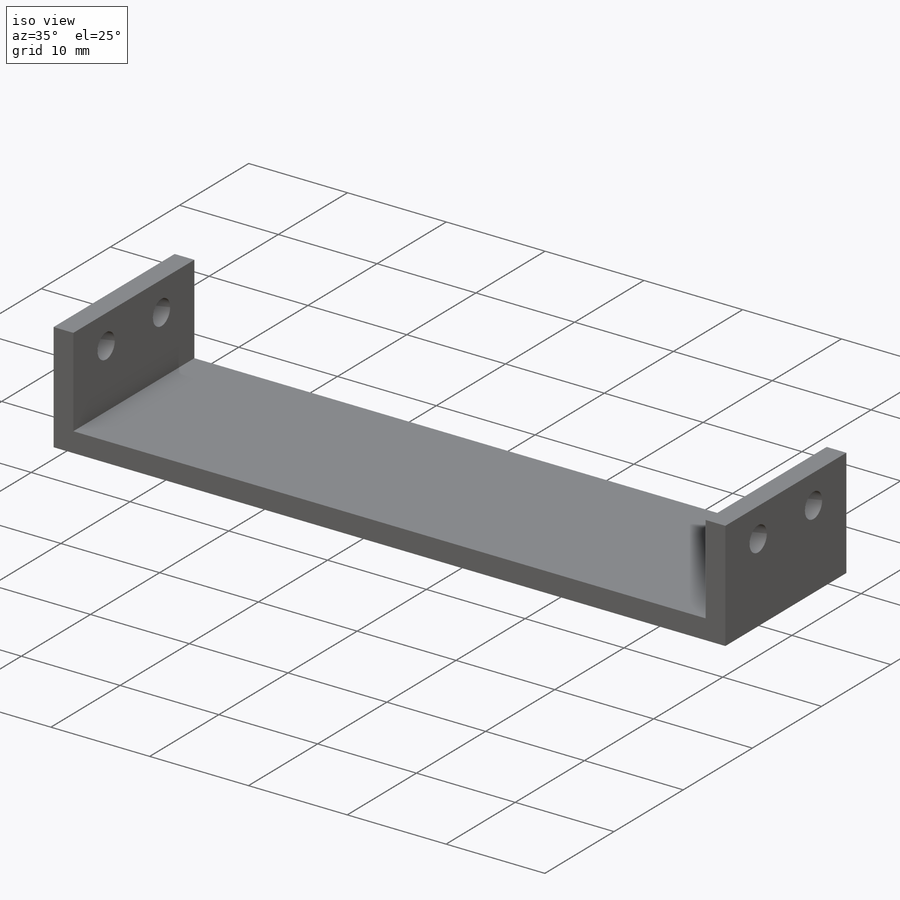
[diagram: iso view]
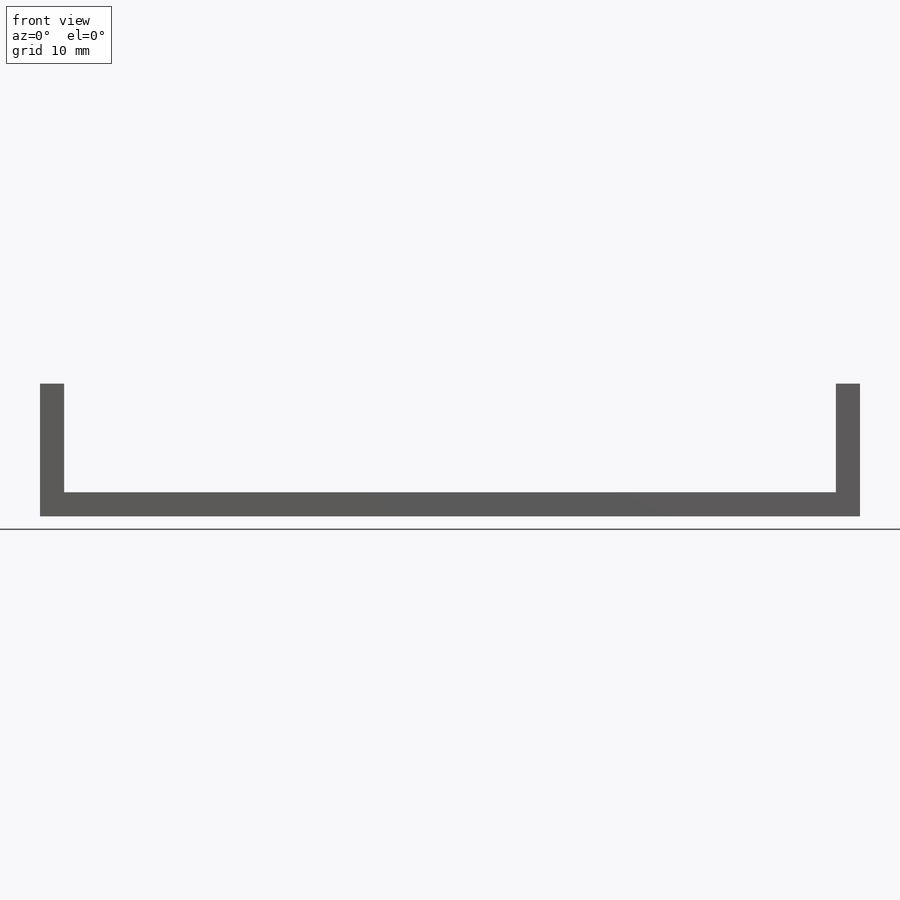
[diagram: front view]
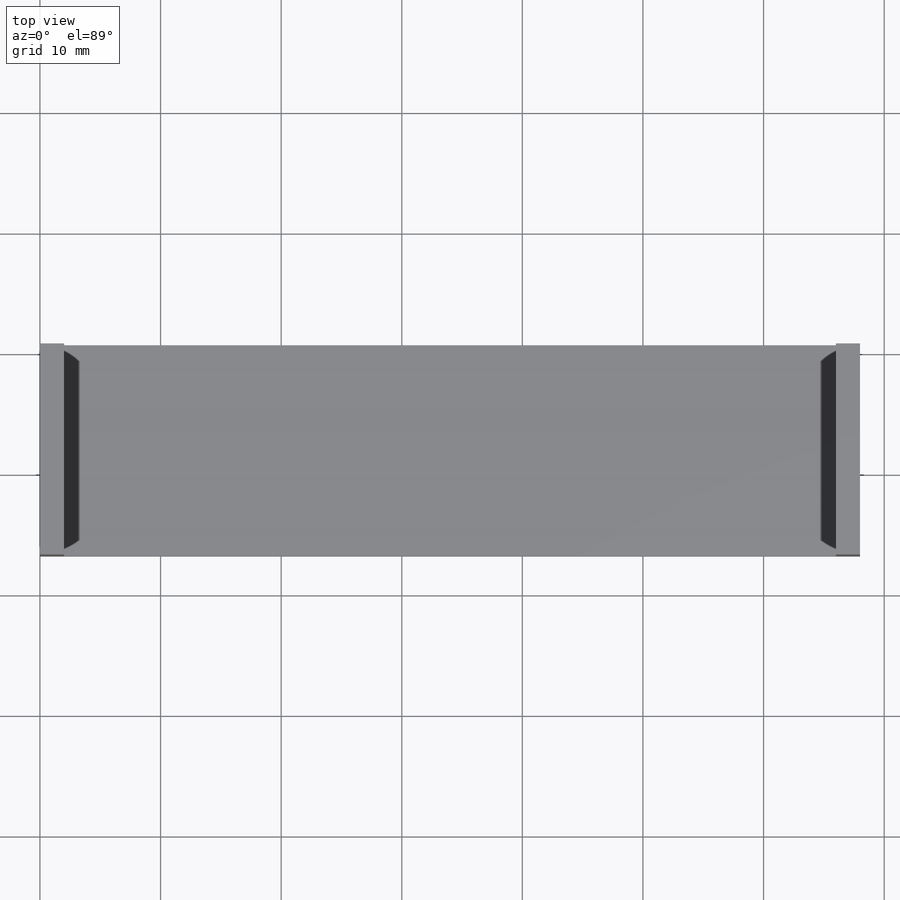
[diagram: top view]
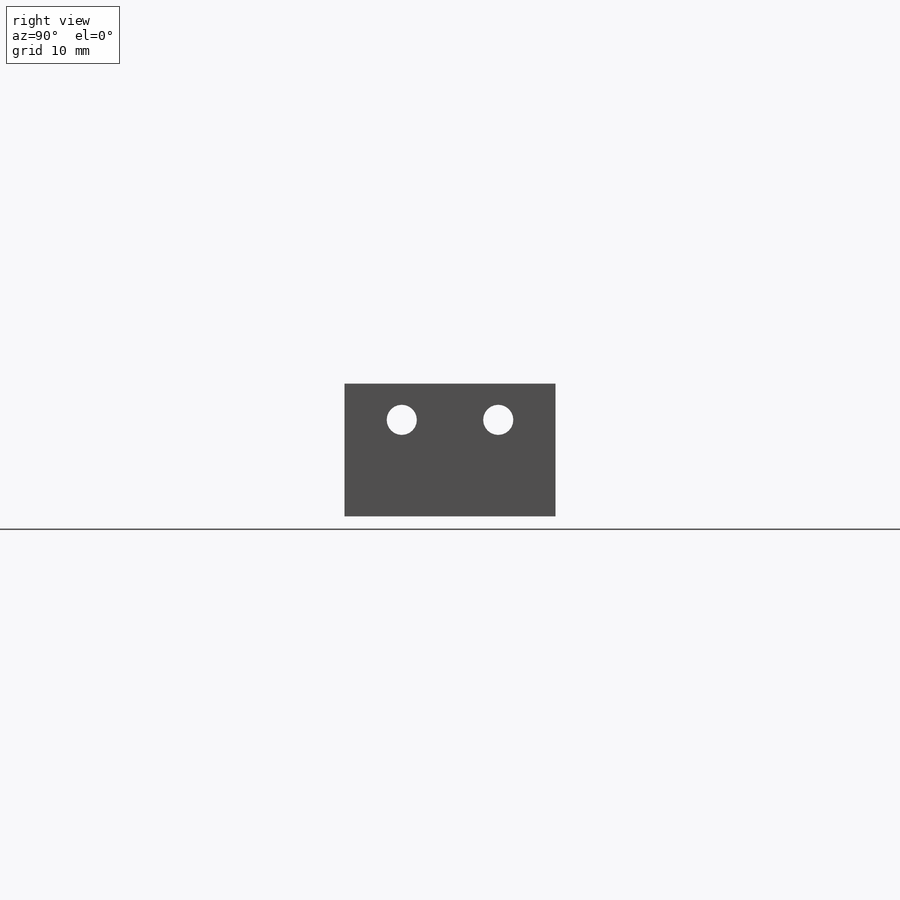
[diagram: right view]
SOLIDWORKS PART (.sldprt)
format: sldprt  version: not decoded by parser v0  size: 164,864 bytes
history: native  units: mm
features: sketch x4, extrude x3, material x1, cut_extrude x1 (+12 scaffold rows collapsed)
feature tree (21):
  scaffold x12  (default folders/planes/origin — collapsed)
  material  "Material <not specified>"
  sketch  "Sketch1"  dims[D1=11.0mm D2=17.5mm]
  extrude  "Boss-Extrude1"  Depth=2mm
  sketch  "Sketch2"  dims[D1=2.0mm]
  extrude  "Boss-Extrude2"  Depth=64mm
  sketch  "Sketch3"
  extrude  "Boss-Extrude3"  Depth=2mm
  sketch  "Sketch4"  dims[c1.D1=~0.824068mm c1.D4=2.5mm c2.D1=6.0mm c2.D2=6.0mm c2.D3=4.0mm c2.D4=1.0mm c3.D3=3.0mm c3.D4=3.0mm c3.D1=4.0mm c3.D2=4.0mm]
  cut_extrude  "Cut-Extrude1"  Depth=68mm
decode coverage: 7 of 8 modeling features carry decoded parameters
note: ~ marks probable driven/reference dimensions
note: suppression state not decoded; provenance and decode notes live in map.json
